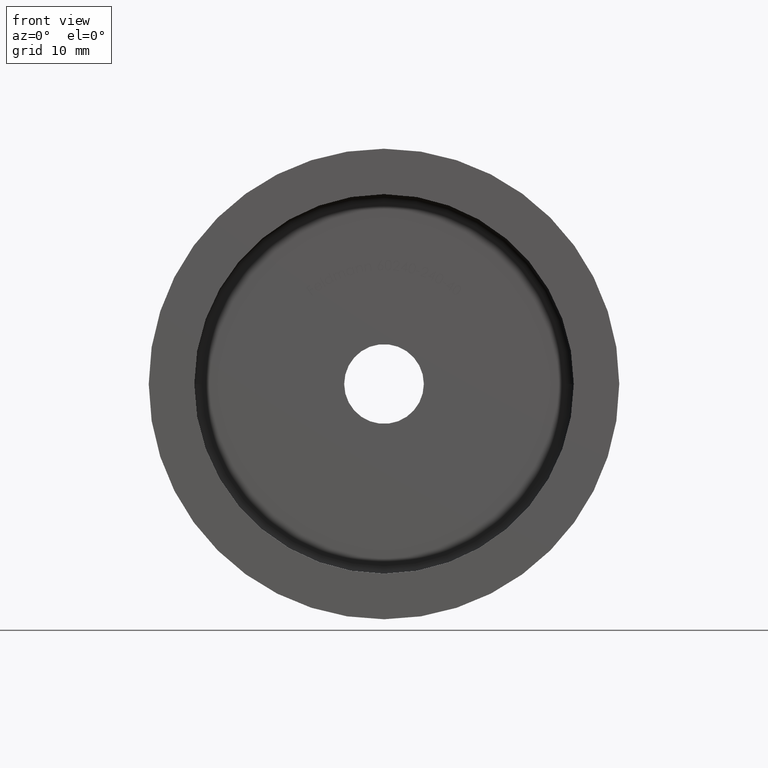
[diagram: clean part render]
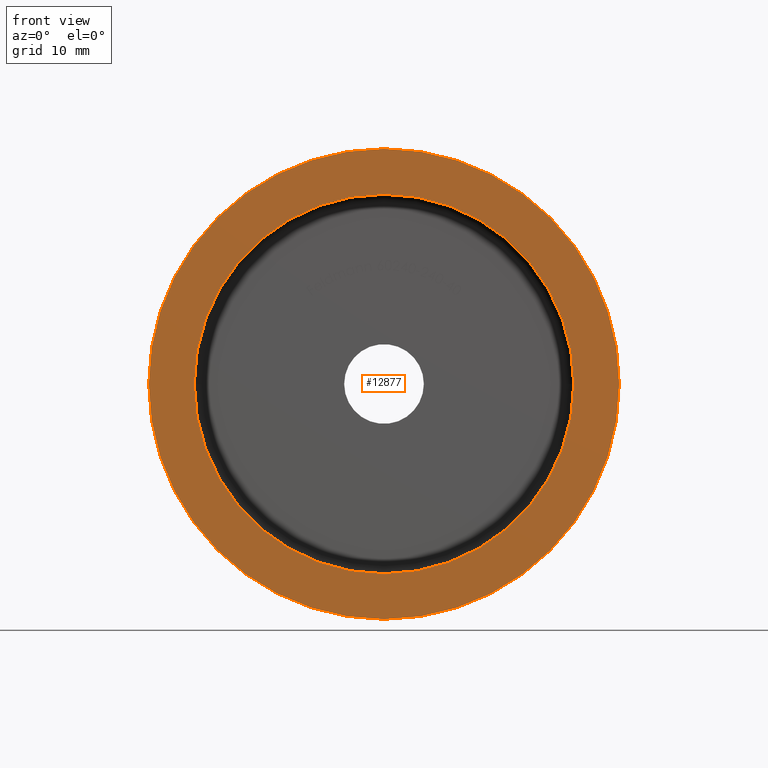
[diagram: same view with one face highlighted and labeled with its STEP entity id]
A machine part, front view. The second image highlights one B-rep face of the part: STEP entity #12877.
In plain terms, the highlighted planar face has unit normal (0, -1, 0).
Its self-contained STEP definition (entity closure, byte-faithful):
#858 = VERTEX_POINT ( 'NONE', #4689 ) ;
#1329 = CARTESIAN_POINT ( 'NONE',  ( 0.000000000000000000, 0.000000000000000000, 0.000000000000000000 ) ) ;
#1640 = VERTEX_POINT ( 'NONE', #8630 ) ;
#1644 = CIRCLE ( 'NONE', #11172, 25.00000000000000000 ) ;
#1875 = DIRECTION ( 'NONE',  ( 1.000000000000000000, 8.673617379884035472E-17, 0.000000000000000000 ) ) ;
#1929 = DIRECTION ( 'NONE',  ( 8.673617379884035472E-17, -1.000000000000000000, 0.000000000000000000 ) ) ;
#2068 = VERTEX_POINT ( 'NONE', #6268 ) ;
#2712 = CIRCLE ( 'NONE', #9668, 31.00000000000000000 ) ;
#3038 = CIRCLE ( 'NONE', #14211, 25.00000000000000000 ) ;
#3312 = DIRECTION ( 'NONE',  ( -8.673617379884035472E-17, 1.000000000000000000, -0.000000000000000000 ) ) ;
#3354 = ORIENTED_EDGE ( 'NONE', *, *, #5034, .F. ) ;
#3358 = DIRECTION ( 'NONE',  ( -1.000000000000000000, -8.673617379884035472E-17, 0.000000000000000000 ) ) ;
#3397 = DIRECTION ( 'NONE',  ( 0.000000000000000000, -1.000000000000000000, 0.000000000000000000 ) ) ;
#3596 = ORIENTED_EDGE ( 'NONE', *, *, #5928, .F. ) ;
#3664 = CARTESIAN_POINT ( 'NONE',  ( 0.000000000000000000, 0.000000000000000000, 0.000000000000000000 ) ) ;
#4215 = CARTESIAN_POINT ( 'NONE',  ( -8.499999999999998224, -9.054108630585023749E-16, 0.000000000000000000 ) ) ;
#4689 = CARTESIAN_POINT ( 'NONE',  ( 31.00000000000000000, 2.688821387764050602E-15, 3.796405077356795904E-15 ) ) ;
#4889 = DIRECTION ( 'NONE',  ( -8.673617379884035472E-17, 1.000000000000000000, -0.000000000000000000 ) ) ;
#5014 = EDGE_CURVE ( 'NONE', #858, #1640, #2712, .T. ) ;
#5034 = EDGE_CURVE ( 'NONE', #2068, #13819, #1644, .T. ) ;
#5566 = EDGE_LOOP ( 'NONE', ( #3354, #3596 ) ) ;
#5928 = EDGE_CURVE ( 'NONE', #13819, #2068, #3038, .T. ) ;
#6268 = CARTESIAN_POINT ( 'NONE',  ( 0.000000000000000000, 0.000000000000000000, -25.00000000000000000 ) ) ;
#6385 = EDGE_CURVE ( 'NONE', #1640, #858, #11998, .T. ) ;
#7041 = CARTESIAN_POINT ( 'NONE',  ( 0.000000000000000000, 0.000000000000000000, 0.000000000000000000 ) ) ;
#8630 = CARTESIAN_POINT ( 'NONE',  ( -31.00000000000000000, -2.688821387764050996E-15, 0.000000000000000000 ) ) ;
#8908 = CARTESIAN_POINT ( 'NONE',  ( 0.000000000000000000, 0.000000000000000000, 0.000000000000000000 ) ) ;
#9239 = AXIS2_PLACEMENT_3D ( 'NONE', #4215, #1929, #1875 ) ;
#9415 = DIRECTION ( 'NONE',  ( -1.000000000000000000, -8.673617379884035472E-17, 0.000000000000000000 ) ) ;
#9668 = AXIS2_PLACEMENT_3D ( 'NONE', #7041, #4889, #9415 ) ;
#10487 = DIRECTION ( 'NONE',  ( 0.000000000000000000, 0.000000000000000000, -1.000000000000000000 ) ) ;
#10833 = CARTESIAN_POINT ( 'NONE',  ( 3.061616997868382254E-15, 0.000000000000000000, 25.00000000000000000 ) ) ;
#11172 = AXIS2_PLACEMENT_3D ( 'NONE', #3664, #11521, #10487 ) ;
#11254 = DIRECTION ( 'NONE',  ( 0.000000000000000000, 0.000000000000000000, -1.000000000000000000 ) ) ;
#11521 = DIRECTION ( 'NONE',  ( 0.000000000000000000, -1.000000000000000000, 0.000000000000000000 ) ) ;
#11562 = AXIS2_PLACEMENT_3D ( 'NONE', #1329, #3312, #3358 ) ;
#11564 = ORIENTED_EDGE ( 'NONE', *, *, #6385, .F. ) ;
#11998 = CIRCLE ( 'NONE', #11562, 31.00000000000000000 ) ;
#12877 = ADVANCED_FACE ( 'NONE', ( #14382, #13841 ), #14331, .T. ) ;
#13769 = EDGE_LOOP ( 'NONE', ( #11564, #14476 ) ) ;
#13819 = VERTEX_POINT ( 'NONE', #10833 ) ;
#13841 = FACE_OUTER_BOUND ( 'NONE', #13769, .T. ) ;
#14211 = AXIS2_PLACEMENT_3D ( 'NONE', #8908, #3397, #11254 ) ;
#14331 = PLANE ( 'NONE',  #9239 ) ;
#14382 = FACE_BOUND ( 'NONE', #5566, .T. ) ;
#14476 = ORIENTED_EDGE ( 'NONE', *, *, #5014, .F. ) ;